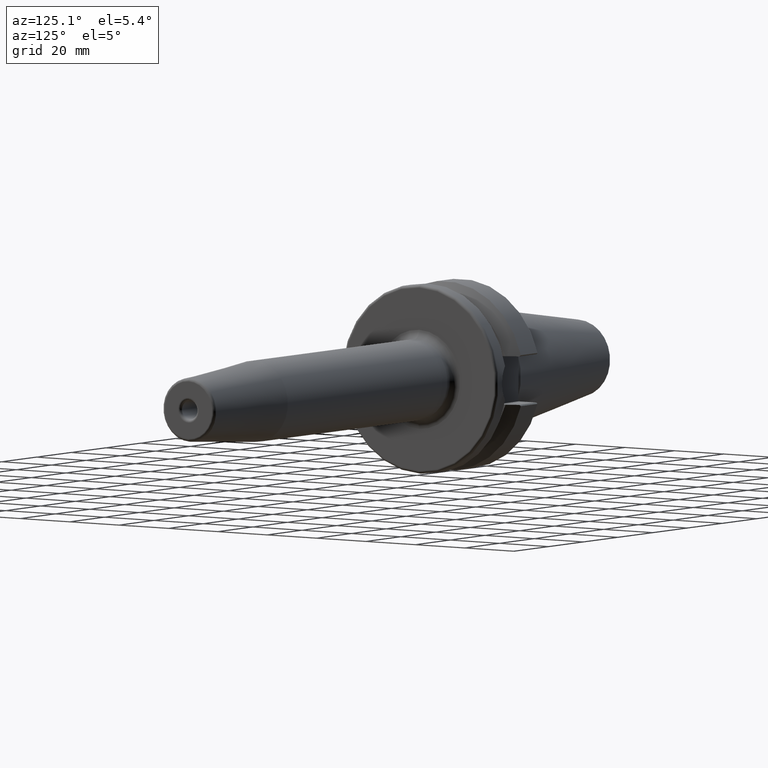
[diagram: clean part render]
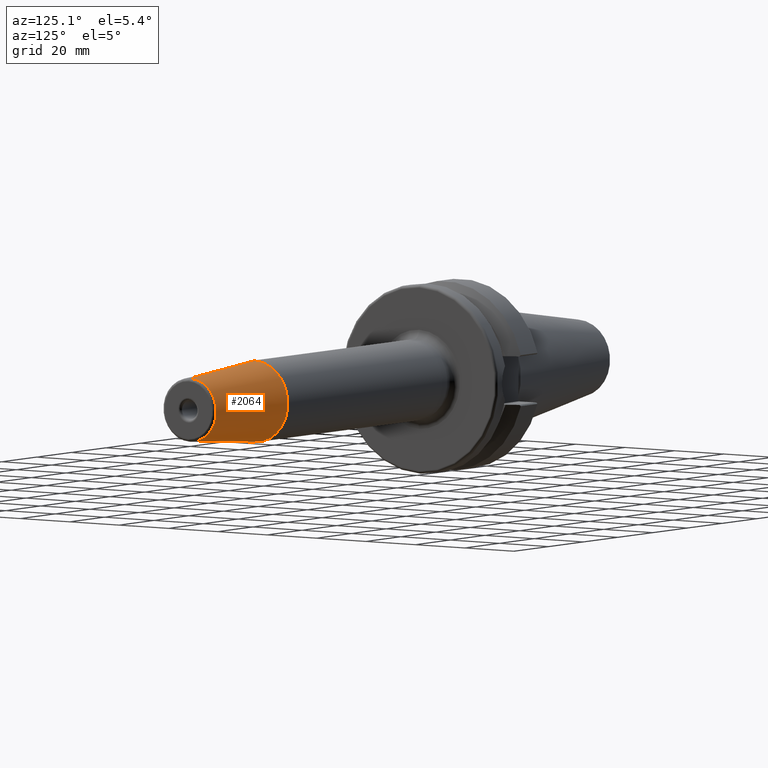
[diagram: same view with one face highlighted and labeled with its STEP entity id]
A machine part, auxiliary view. The second image highlights one B-rep face of the part: STEP entity #2064.
In plain terms, the highlighted conical surface has half-angle 4.5 deg.
Its self-contained STEP definition (entity closure, byte-faithful):
#476=DIRECTION('',(-9.969173337331E-1,0.E0,-7.845909572785E-2));
#477=VECTOR('',#476,3.731209403789E1);
#478=CARTESIAN_POINT('',(1.590784590957E2,0.E0,-1.057252684207E1));
#479=LINE('',#478,#477);
#480=DIRECTION('',(-9.969173337331E-1,0.E0,7.845909572785E-2));
#481=VECTOR('',#480,3.731209403789E1);
#482=CARTESIAN_POINT('',(1.590784590957E2,0.E0,1.057252684207E1));
#483=LINE('',#482,#481);
#489=CARTESIAN_POINT('',(1.590784590957E2,0.E0,0.E0));
#490=DIRECTION('',(1.E0,0.E0,0.E0));
#491=DIRECTION('',(0.E0,0.E0,-1.E0));
#492=AXIS2_PLACEMENT_3D('',#489,#490,#491);
#494=CARTESIAN_POINT('',(1.218813857915E2,0.E0,0.E0));
#495=DIRECTION('',(1.E0,0.E0,0.E0));
#496=DIRECTION('',(0.E0,0.E0,-1.E0));
#497=AXIS2_PLACEMENT_3D('',#494,#495,#496);
#1262=CARTESIAN_POINT('',(1.590784590957E2,0.E0,-1.057252684207E1));
#1264=VERTEX_POINT('',#1262);
#1265=CARTESIAN_POINT('',(1.218813857915E2,0.E0,-1.35E1));
#1266=VERTEX_POINT('',#1265);
#1294=CARTESIAN_POINT('',(1.590784590957E2,0.E0,1.057252684207E1));
#1296=VERTEX_POINT('',#1294);
#1297=CARTESIAN_POINT('',(1.218813857915E2,0.E0,1.35E1));
#1298=VERTEX_POINT('',#1297);
#2052=CARTESIAN_POINT('',(1.404799224436E2,0.E0,0.E0));
#2053=DIRECTION('',(-1.E0,0.E0,0.E0));
#2054=DIRECTION('',(0.E0,0.E0,-1.E0));
#2055=AXIS2_PLACEMENT_3D('',#2052,#2053,#2054);
#2056=CONICAL_SURFACE('',#2055,1.203626342104E1,4.5E0);
#2057=ORIENTED_EDGE('',*,*,#2042,.F.);
#2058=ORIENTED_EDGE('',*,*,#2019,.T.);
#2059=ORIENTED_EDGE('',*,*,#2046,.T.);
#2061=ORIENTED_EDGE('',*,*,#2060,.F.);
#2062=EDGE_LOOP('',(#2057,#2058,#2059,#2061));
#2063=FACE_OUTER_BOUND('',#2062,.F.);
#2064=ADVANCED_FACE('',(#2063),#2056,.T.);
#493=CIRCLE('',#492,1.057252684207E1);
#498=CIRCLE('',#497,1.35E1);
#2019=EDGE_CURVE('',#1264,#1296,#493,.T.);
#2042=EDGE_CURVE('',#1264,#1266,#479,.T.);
#2046=EDGE_CURVE('',#1296,#1298,#483,.T.);
#2060=EDGE_CURVE('',#1266,#1298,#498,.T.);